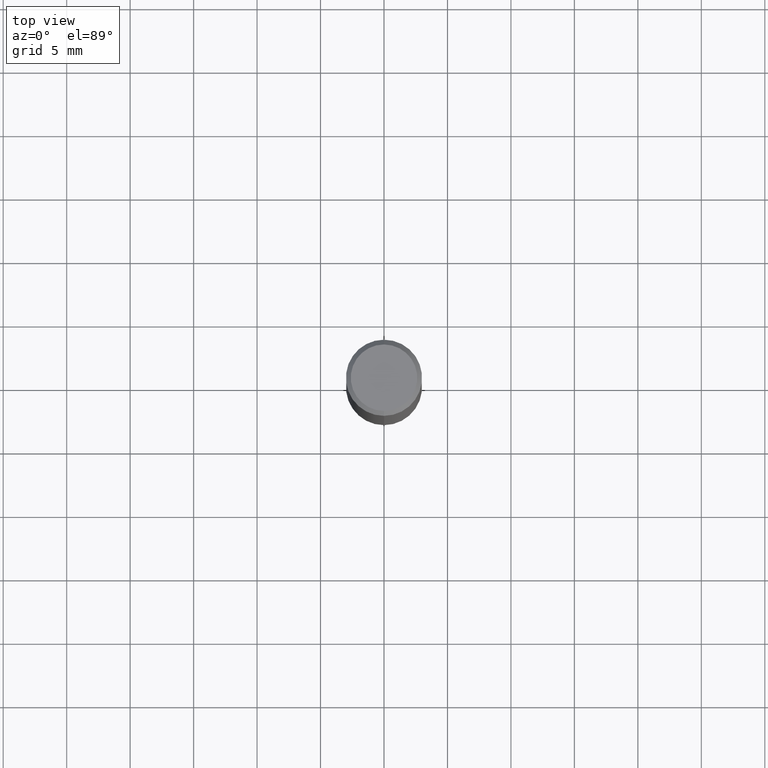
[diagram: clean part render]
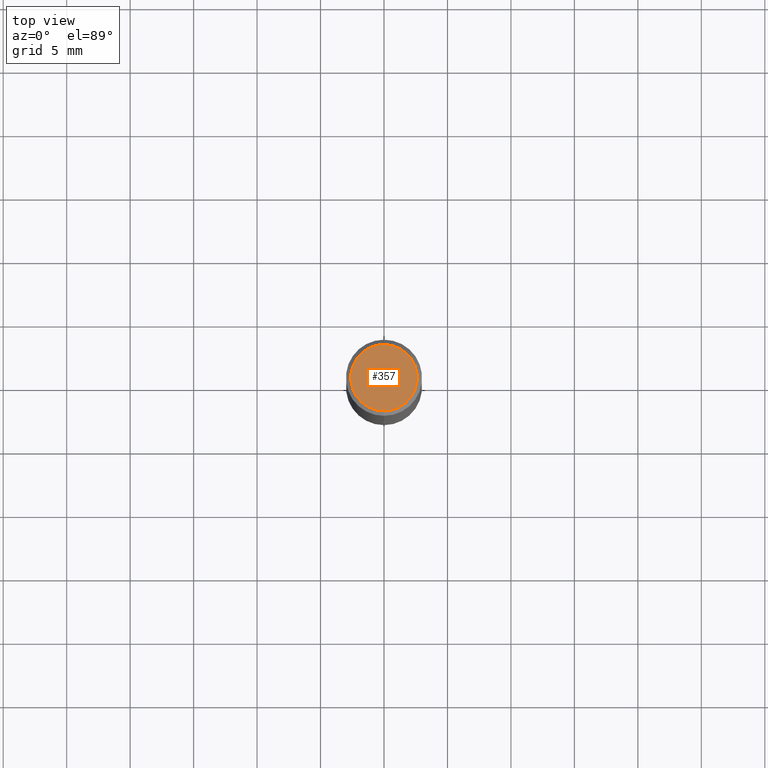
[diagram: same view with one face highlighted and labeled with its STEP entity id]
A machine part, top view. The second image highlights one B-rep face of the part: STEP entity #357.
In plain terms, the highlighted planar face has unit normal (0, -0, -1).
Its self-contained STEP definition (entity closure, byte-faithful):
#4 = CARTESIAN_POINT ( 'NONE',  ( -6.680938517608217067E-45, 9.541184901237628866E-31, 2.732334606503583506E-16 ) ) ;
#23 = AXIS2_PLACEMENT_3D ( 'NONE', #395, #41, #58 ) ;
#41 = DIRECTION ( 'NONE',  ( 2.445139223324277343E-29, -3.491953320258587093E-15, -1.000000000000000000 ) ) ;
#55 = DIRECTION ( 'NONE',  ( -6.982962677686265922E-15, -1.000000000000000000, 3.491953320258587487E-15 ) ) ;
#56 = EDGE_CURVE ( 'NONE', #325, #112, #187, .T. ) ;
#58 = DIRECTION ( 'NONE',  ( 6.982962677686265922E-15, 1.000000000000000000, -3.491953320258587093E-15 ) ) ;
#64 = AXIS2_PLACEMENT_3D ( 'NONE', #4, #164, #319 ) ;
#82 = ORIENTED_EDGE ( 'NONE', *, *, #412, .T. ) ;
#112 = VERTEX_POINT ( 'NONE', #292 ) ;
#164 = DIRECTION ( 'NONE',  ( -2.445139223324277623E-29, 3.491953320258587093E-15, 1.000000000000000000 ) ) ;
#180 = CIRCLE ( 'NONE', #203, 0.1031000000000000111 ) ;
#187 = CIRCLE ( 'NONE', #64, 0.1031000000000000111 ) ;
#203 = AXIS2_PLACEMENT_3D ( 'NONE', #446, #249, #55 ) ;
#243 = PLANE ( 'NONE',  #23 ) ;
#249 = DIRECTION ( 'NONE',  ( -2.445139223324277623E-29, 3.491953320258587093E-15, 1.000000000000000000 ) ) ;
#250 = CARTESIAN_POINT ( 'NONE',  ( 7.723156721521011834E-16, 0.1031000000000000111, -8.678692666830198749E-17 ) ) ;
#254 = FACE_OUTER_BOUND ( 'NONE', #290, .T. ) ;
#290 = EDGE_LOOP ( 'NONE', ( #409, #82 ) ) ;
#292 = CARTESIAN_POINT ( 'NONE',  ( -7.587710785535310407E-16, -0.1031000000000000111, 6.332538479690188119E-16 ) ) ;
#319 = DIRECTION ( 'NONE',  ( -6.982962677686265922E-15, -1.000000000000000000, 3.491953320258587487E-15 ) ) ;
#325 = VERTEX_POINT ( 'NONE', #250 ) ;
#357 = ADVANCED_FACE ( 'NONE', ( #254 ), #243, .F. ) ;
#395 = CARTESIAN_POINT ( 'NONE',  ( 7.199434520694541042E-16, 0.1031000000000000111, -2.234036569934811628E-16 ) ) ;
#409 = ORIENTED_EDGE ( 'NONE', *, *, #56, .T. ) ;
#412 = EDGE_CURVE ( 'NONE', #112, #325, #180, .T. ) ;
#446 = CARTESIAN_POINT ( 'NONE',  ( -6.680938517608217067E-45, 9.541184901237628866E-31, 2.732334606503583506E-16 ) ) ;